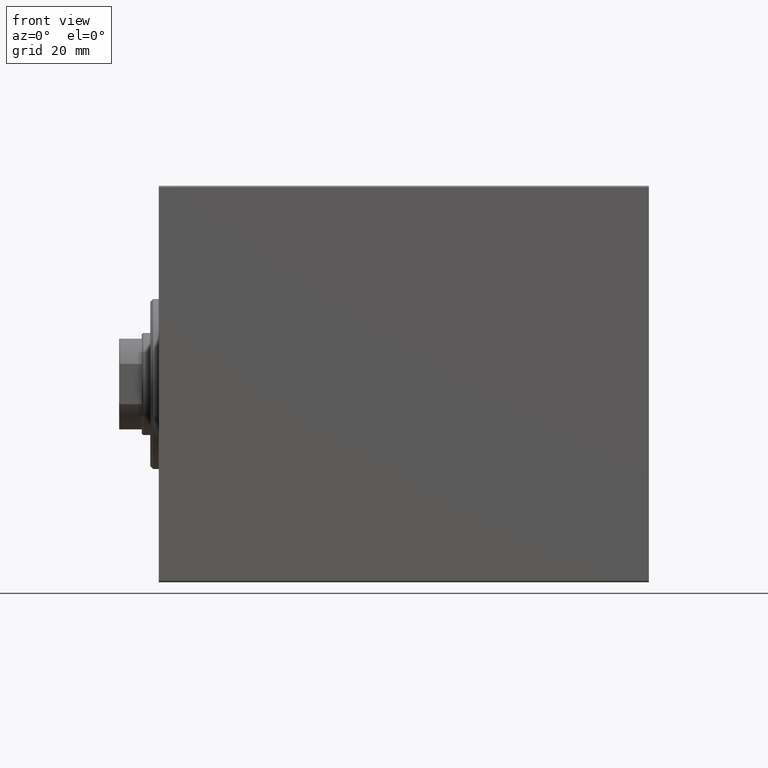
[diagram: clean part render]
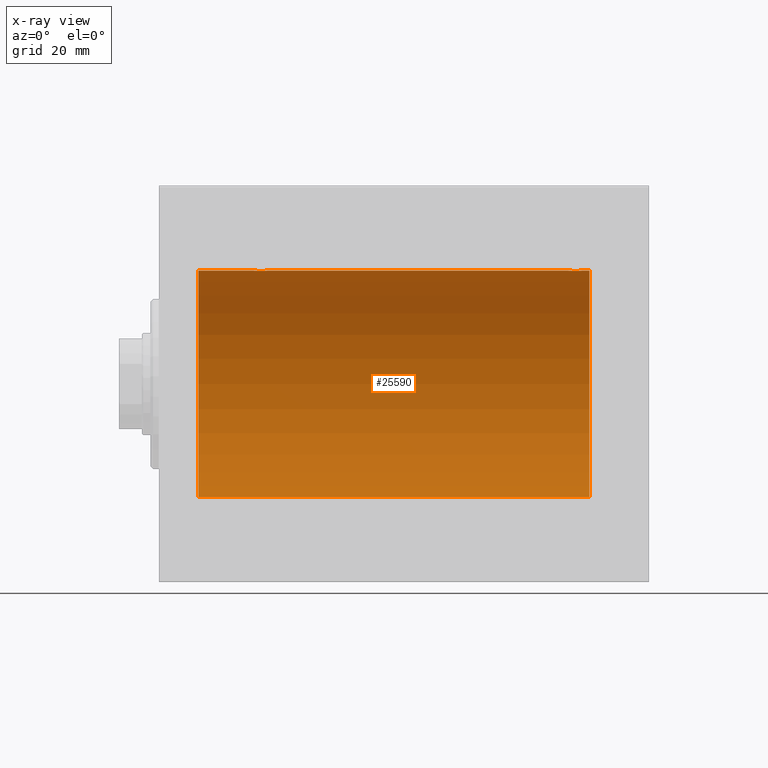
[diagram: x-ray — body ghosted, one internal face saturated and labeled with its STEP entity id]
A machine part, front view, then the same camera in x-ray: the body is ghosted and one INTERNAL B-rep face — a face not visible from any outside direction — is saturated and labeled: STEP entity #25590.
In plain terms, the highlighted cylindrical surface (partial cylindrical patch) has radius 40 mm, axis along (-1, -0, -0).
Its self-contained STEP definition (entity closure, byte-faithful):
#761 = CARTESIAN_POINT ( 'NONE',  ( 152.0000000000000000, 0.000000000000000000, 40.00000000000000000 ) ) ;
#1392 = CARTESIAN_POINT ( 'NONE',  ( 152.0000000000000000, 0.000000000000000000, 40.00000000000000000 ) ) ;
#1987 = CARTESIAN_POINT ( 'NONE',  ( 38.90427371185430161, 0.7768046863726105755, 39.99291636985138609 ) ) ;
#2205 = CARTESIAN_POINT ( 'NONE',  ( 34.17068180410537792, 2.385749008316979669, 39.92893738690724348 ) ) ;
#2258 = CARTESIAN_POINT ( 'NONE',  ( 148.8315373355074769, 2.384195078505186416, 39.92903310064217948 ) ) ;
#2481 = CARTESIAN_POINT ( 'NONE',  ( 150.0000000000000284, 1.446721683758770418E-15, 40.00000000000000000 ) ) ;
#2649 = CARTESIAN_POINT ( 'NONE',  ( 36.39154242090099700, 2.980886287300807957, 39.88879301994635540 ) ) ;
#2924 = CARTESIAN_POINT ( 'NONE',  ( 148.3290230553672018, 2.696641662727001787, 39.90906847305313221 ) ) ;
#4168 = B_SPLINE_CURVE_WITH_KNOTS ( 'NONE', 3,
 ( #2481, #36808, #39477, #33471, #22995, #42845, #26794, #43063, #43720, #40361, #2258, #32591, #2924, #9833, #16533, #12301, #26573, #26355, #8958, #9613, #25905, #29476, #5825, #39704, #22552, #37024, #36148, #12523, #5610, #33027, #22780, #36367, #32811, #16097 ),
 .UNSPECIFIED., .F., .F.,
 ( 4, 2, 2, 2, 2, 2, 2, 2, 2, 2, 2, 2, 2, 2, 2, 2, 4 ),
 ( 1.405868427696373966E-18, 0.0005864162728940697320, 0.001172832545788137946, 0.001759248818682206377, 0.002345665091576274591, 0.002932081364470342805, 0.003518497637364411453, 0.004104913910258479667, 0.004691330183152548315, 0.005277746456046616963, 0.005864162728940684743, 0.006450579001834753391, 0.007036995274728822039, 0.007623411547622889819, 0.008209827820516957600, 0.008796244093411027115, 0.009382660366305094896 ),
 .UNSPECIFIED. ) ;
#4254 = CARTESIAN_POINT ( 'NONE',  ( 13.99999999999998401, 0.000000000000000000, 40.00000000000000000 ) ) ;
#4846 = LINE ( 'NONE', #21790, #34275 ) ;
#5196 = DIRECTION ( 'NONE',  ( -1.000000000000000000, 0.000000000000000000, 0.000000000000000000 ) ) ;
#5554 = CARTESIAN_POINT ( 'NONE',  ( 35.60649793607049673, 2.980544951704983347, 39.88881833341080352 ) ) ;
#5610 = CARTESIAN_POINT ( 'NONE',  ( 144.3036467693047769, 1.329803094607254321, 39.97830262548650637 ) ) ;
#5825 = CARTESIAN_POINT ( 'NONE',  ( 145.4957064313994977, 2.602941461497640496, 39.91536715259250911 ) ) ;
#5842 = CARTESIAN_POINT ( 'NONE',  ( 150.0000000000000284, 1.446721683758770418E-15, 40.00000000000000000 ) ) ;
#5989 = CARTESIAN_POINT ( 'NONE',  ( 37.83153733550744136, 2.384195078505188636, 39.92903310064217948 ) ) ;
#6033 = VERTEX_POINT ( 'NONE', #37917 ) ;
#6218 = CARTESIAN_POINT ( 'NONE',  ( 33.09635504612251111, 0.7792872749133261667, 39.99287049138470707 ) ) ;
#6806 = CARTESIAN_POINT ( 'NONE',  ( 152.0000000000000000, 4.898587196589413026E-15, -40.00000000000000000 ) ) ;
#7118 = EDGE_LOOP ( 'NONE', ( #25196, #33240, #26301, #33249, #28931, #40675, #29082, #19563 ) ) ;
#7784 = DIRECTION ( 'NONE',  ( -1.000000000000000000, 0.000000000000000000, 0.000000000000000000 ) ) ;
#8217 = CARTESIAN_POINT ( 'NONE',  ( 144.0000000000000284, -1.482387970046064334E-23, 40.00000000000000000 ) ) ;
#8394 = DIRECTION ( 'NONE',  ( -1.000000000000000000, -0.000000000000000000, -0.000000000000000000 ) ) ;
#8686 = CARTESIAN_POINT ( 'NONE',  ( 38.69591204181047317, 1.330687358699878420, 39.97827280031935970 ) ) ;
#8958 = CARTESIAN_POINT ( 'NONE',  ( 146.6064979360705536, 2.980544951704977574, 39.88881833341080352 ) ) ;
#9118 = CARTESIAN_POINT ( 'NONE',  ( 33.39757861902342029, 1.505187563391998884, 39.97200074276641857 ) ) ;
#9613 = CARTESIAN_POINT ( 'NONE',  ( 146.2216664113802551, 2.903909245874791267, 39.89447063612582411 ) ) ;
#9833 = CARTESIAN_POINT ( 'NONE',  ( 147.9680084476328545, 2.846249845702957693, 39.89867772821342129 ) ) ;
#12031 = CARTESIAN_POINT ( 'NONE',  ( 33.00000000000001421, 0.1958295874890018384, 39.99999999999998579 ) ) ;
#12091 = LINE ( 'NONE', #1392, #17453 ) ;
#12252 = CARTESIAN_POINT ( 'NONE',  ( 37.50356430083393633, 2.603499486649419659, 39.91533365697402758 ) ) ;
#12301 = CARTESIAN_POINT ( 'NONE',  ( 147.3915424209010041, 2.980886287300803072, 39.88879301994635540 ) ) ;
#12316 = DIRECTION ( 'NONE',  ( -1.000000000000000000, -0.000000000000000000, -0.000000000000000000 ) ) ;
#12523 = CARTESIAN_POINT ( 'NONE',  ( 144.3975786190234487, 1.505187563391999328, 39.97200074276641857 ) ) ;
#12686 = CARTESIAN_POINT ( 'NONE',  ( 37.98255211990295521, 2.260036752248976377, 39.93634209860680073 ) ) ;
#12737 = VECTOR ( 'NONE', #13700, 1000.000000000000000 ) ;
#13354 = VERTEX_POINT ( 'NONE', #38304 ) ;
#13700 = DIRECTION ( 'NONE',  ( -1.000000000000000000, -0.000000000000000000, -0.000000000000000000 ) ) ;
#13922 = LINE ( 'NONE', #761, #12737 ) ;
#14204 = AXIS2_PLACEMENT_3D ( 'NONE', #43080, #12316, #25704 ) ;
#15462 = CARTESIAN_POINT ( 'NONE',  ( 152.0000000000000000, 0.000000000000000000, 0.000000000000000000 ) ) ;
#15471 = EDGE_CURVE ( 'NONE', #42330, #29802, #43293, .T. ) ;
#15488 = VERTEX_POINT ( 'NONE', #8217 ) ;
#15818 = CARTESIAN_POINT ( 'NONE',  ( 38.84654924566736867, 0.9673820216299553465, 39.98871336974454493 ) ) ;
#16040 = CARTESIAN_POINT ( 'NONE',  ( 38.38599102747435410, 1.829066045078044711, 39.95849278436325136 ) ) ;
#16097 = CARTESIAN_POINT ( 'NONE',  ( 144.0000000000000284, -1.482387970046064334E-23, 40.00000000000000000 ) ) ;
#16258 = CARTESIAN_POINT ( 'NONE',  ( 36.19682449776940558, 2.999929504480790321, 39.88734665245503663 ) ) ;
#16533 = CARTESIAN_POINT ( 'NONE',  ( 147.7788663188552221, 2.903851887155386891, 39.89447500423337800 ) ) ;
#17453 = VECTOR ( 'NONE', #28616, 1000.000000000000000 ) ;
#17651 = AXIS2_PLACEMENT_3D ( 'NONE', #24734, #7784, #34978 ) ;
#18889 = DIRECTION ( 'NONE',  ( -1.000000000000000000, -0.000000000000000000, -0.000000000000000000 ) ) ;
#19163 = CARTESIAN_POINT ( 'NONE',  ( 35.03461702239748377, 2.847223932150706016, 39.89860891179019120 ) ) ;
#19563 = ORIENTED_EDGE ( 'NONE', *, *, #15471, .T. ) ;
#21246 = VERTEX_POINT ( 'NONE', #25054 ) ;
#21790 = CARTESIAN_POINT ( 'NONE',  ( 152.0000000000000000, 0.000000000000000000, 40.00000000000000000 ) ) ;
#22280 = CARTESIAN_POINT ( 'NONE',  ( 38.25929512657906173, 1.983397227149399589, 39.95103655448512825 ) ) ;
#22498 = CARTESIAN_POINT ( 'NONE',  ( 34.49570643139941950, 2.602941461497644049, 39.91536715259250911 ) ) ;
#22552 = CARTESIAN_POINT ( 'NONE',  ( 145.0191701439611336, 2.261756164323870166, 39.93625070860936432 ) ) ;
#22723 = CARTESIAN_POINT ( 'NONE',  ( 39.00000000000000000, 1.037715139942869821E-15, 40.00000000000000000 ) ) ;
#22780 = CARTESIAN_POINT ( 'NONE',  ( 144.0963550461225395, 0.7792872749133264998, 39.99287049138470707 ) ) ;
#22995 = CARTESIAN_POINT ( 'NONE',  ( 149.8465492456673758, 0.9673820216299510166, 39.98871336974454493 ) ) ;
#23022 = EDGE_CURVE ( 'NONE', #13354, #25638, #13922, .T. ) ;
#23093 = EDGE_CURVE ( 'NONE', #13354, #29811, #43352, .T. ) ;
#24165 = EDGE_CURVE ( 'NONE', #21246, #6033, #39537, .T. ) ;
#24734 = CARTESIAN_POINT ( 'NONE',  ( 13.99999999999998401, 0.000000000000000000, 0.000000000000000000 ) ) ;
#25054 = CARTESIAN_POINT ( 'NONE',  ( 39.00000000000000000, 1.037715139942869821E-15, 40.00000000000000000 ) ) ;
#25196 = ORIENTED_EDGE ( 'NONE', *, *, #26648, .F. ) ;
#25590 = ADVANCED_FACE ( 'NONE', ( #42860 ), #35730, .F. ) ;
#25637 = CARTESIAN_POINT ( 'NONE',  ( 34.67130743887656763, 2.696891635062799608, 39.90905226542625428 ) ) ;
#25638 = VERTEX_POINT ( 'NONE', #5842 ) ;
#25704 = DIRECTION ( 'NONE',  ( 0.000000000000000000, 0.000000000000000000, 1.000000000000000000 ) ) ;
#25905 = CARTESIAN_POINT ( 'NONE',  ( 146.0346170223974980, 2.847223932150697578, 39.89860891179019120 ) ) ;
#26300 = CARTESIAN_POINT ( 'NONE',  ( 36.77886631885524338, 2.903851887155389555, 39.89447500423337800 ) ) ;
#26301 = ORIENTED_EDGE ( 'NONE', *, *, #23022, .T. ) ;
#26355 = CARTESIAN_POINT ( 'NONE',  ( 146.8053303862724022, 3.000070108558740234, 39.88733607736547526 ) ) ;
#26518 = CARTESIAN_POINT ( 'NONE',  ( 35.22166641138024090, 2.903909245874795708, 39.89447063612582411 ) ) ;
#26573 = CARTESIAN_POINT ( 'NONE',  ( 147.1968244977694553, 2.999929504480784104, 39.88734665245503663 ) ) ;
#26648 = EDGE_CURVE ( 'NONE', #29811, #29802, #32033, .T. ) ;
#26794 = CARTESIAN_POINT ( 'NONE',  ( 149.6037411517825717, 1.502986292339226981, 39.97208601512195258 ) ) ;
#27327 = CARTESIAN_POINT ( 'NONE',  ( 13.99999999999998401, 4.898587196589413026E-15, -40.00000000000000000 ) ) ;
#28616 = DIRECTION ( 'NONE',  ( -1.000000000000000000, -0.000000000000000000, -0.000000000000000000 ) ) ;
#28635 = DIRECTION ( 'NONE',  ( 0.000000000000000000, 0.000000000000000000, 1.000000000000000000 ) ) ;
#28931 = ORIENTED_EDGE ( 'NONE', *, *, #40049, .T. ) ;
#28989 = CARTESIAN_POINT ( 'NONE',  ( 33.01962587690334061, 0.3947312521144659136, 39.99851454786935534 ) ) ;
#29082 = ORIENTED_EDGE ( 'NONE', *, *, #30708, .T. ) ;
#29210 = CARTESIAN_POINT ( 'NONE',  ( 38.98053369568978610, 0.3932559001416434108, 39.99852666141217838 ) ) ;
#29426 = CARTESIAN_POINT ( 'NONE',  ( 34.01917014396114780, 2.261756164323880380, 39.93625070860936432 ) ) ;
#29476 = CARTESIAN_POINT ( 'NONE',  ( 145.6713074388765961, 2.696891635062789838, 39.90905226542625428 ) ) ;
#29564 = CARTESIAN_POINT ( 'NONE',  ( 152.0000000000000000, 4.898587196589413026E-15, -40.00000000000000000 ) ) ;
#29802 = VERTEX_POINT ( 'NONE', #27327 ) ;
#29811 = VERTEX_POINT ( 'NONE', #6806 ) ;
#30708 = EDGE_CURVE ( 'NONE', #6033, #42330, #4846, .T. ) ;
#32033 = LINE ( 'NONE', #29564, #39134 ) ;
#32591 = CARTESIAN_POINT ( 'NONE',  ( 148.5035643008339719, 2.603499486649415218, 39.91533365697402758 ) ) ;
#32811 = CARTESIAN_POINT ( 'NONE',  ( 144.0000000000000568, 0.1958295874890039479, 39.99999999999998579 ) ) ;
#33027 = CARTESIAN_POINT ( 'NONE',  ( 144.1530856663910924, 0.9663207501652035791, 39.98873943115997065 ) ) ;
#33196 = CARTESIAN_POINT ( 'NONE',  ( 36.96800844763285454, 2.846249845702961689, 39.89867772821342129 ) ) ;
#33240 = ORIENTED_EDGE ( 'NONE', *, *, #23093, .F. ) ;
#33249 = ORIENTED_EDGE ( 'NONE', *, *, #41262, .T. ) ;
#33417 = CARTESIAN_POINT ( 'NONE',  ( 33.30364676930471290, 1.329803094607255876, 39.97830262548650637 ) ) ;
#33471 = CARTESIAN_POINT ( 'NONE',  ( 149.9042737118543016, 0.7768046863726091322, 39.99291636985138609 ) ) ;
#34275 = VECTOR ( 'NONE', #18889, 1000.000000000000000 ) ;
#34978 = DIRECTION ( 'NONE',  ( 0.000000000000000000, 0.000000000000000000, 1.000000000000000000 ) ) ;
#35730 = CYLINDRICAL_SURFACE ( 'NONE', #14204, 40.00000000000000000 ) ;
#35874 = CARTESIAN_POINT ( 'NONE',  ( 33.15308566639104981, 0.9663207501652035791, 39.98873943115997065 ) ) ;
#36148 = CARTESIAN_POINT ( 'NONE',  ( 144.6148306203060656, 1.830069308885369450, 39.95844440547435994 ) ) ;
#36367 = CARTESIAN_POINT ( 'NONE',  ( 144.0196258769033477, 0.3947312521144673014, 39.99851454786935534 ) ) ;
#36753 = CARTESIAN_POINT ( 'NONE',  ( 33.61483062030600166, 1.830069308885371004, 39.95844440547435994 ) ) ;
#36808 = CARTESIAN_POINT ( 'NONE',  ( 150.0000000000000284, 0.1982918730505192351, 39.99999999999999289 ) ) ;
#37024 = CARTESIAN_POINT ( 'NONE',  ( 144.7390160613683179, 1.981711254113857290, 39.95112616827061913 ) ) ;
#37917 = CARTESIAN_POINT ( 'NONE',  ( 32.99999999999999289, -1.483452932268112700E-23, 40.00000000000000000 ) ) ;
#38304 = CARTESIAN_POINT ( 'NONE',  ( 152.0000000000000000, 0.000000000000000000, 40.00000000000000000 ) ) ;
#39134 = VECTOR ( 'NONE', #8394, 1000.000000000000000 ) ;
#39424 = CARTESIAN_POINT ( 'NONE',  ( 32.99999999999999289, -1.483452932268112700E-23, 40.00000000000000000 ) ) ;
#39477 = CARTESIAN_POINT ( 'NONE',  ( 149.9805336956897861, 0.3932559001416426891, 39.99852666141217838 ) ) ;
#39537 = B_SPLINE_CURVE_WITH_KNOTS ( 'NONE', 3,
 ( #22723, #39648, #29210, #1987, #15818, #8686, #42793, #16040, #22280, #12686, #5989, #12252, #43448, #33196, #26300, #2649, #16258, #42572, #5554, #26518, #19163, #25637, #22498, #2205, #29426, #40087, #36753, #9118, #33417, #35874, #6218, #28989, #12031, #39424 ),
 .UNSPECIFIED., .F., .F.,
 ( 4, 2, 2, 2, 2, 2, 2, 2, 2, 2, 2, 2, 2, 2, 2, 2, 4 ),
 ( 2.154821304590792723E-18, 0.0005864162728940711415, 0.001172832545788140115, 0.001759248818682208979, 0.002345665091576278061, 0.002932081364470347142, 0.003518497637364415790, 0.004104913910258484872, 0.004691330183152553519, 0.005277746456046622167, 0.005864162728940691682, 0.006450579001834760330, 0.007036995274728828978, 0.007623411547622898493, 0.008209827820516968008, 0.008796244093411035789, 0.009382660366305105304 ),
 .UNSPECIFIED. ) ;
#39648 = CARTESIAN_POINT ( 'NONE',  ( 39.00000000000000000, 0.1982918730505197347, 39.99999999999999289 ) ) ;
#39704 = CARTESIAN_POINT ( 'NONE',  ( 145.1706818041054419, 2.385749008316978337, 39.92893738690724348 ) ) ;
#40049 = EDGE_CURVE ( 'NONE', #15488, #21246, #12091, .T. ) ;
#40087 = CARTESIAN_POINT ( 'NONE',  ( 33.73901606136833209, 1.981711254113867726, 39.95112616827061913 ) ) ;
#40361 = CARTESIAN_POINT ( 'NONE',  ( 148.9825521199029765, 2.260036752248979930, 39.93634209860680073 ) ) ;
#40675 = ORIENTED_EDGE ( 'NONE', *, *, #24165, .T. ) ;
#41173 = AXIS2_PLACEMENT_3D ( 'NONE', #15462, #5196, #28635 ) ;
#41262 = EDGE_CURVE ( 'NONE', #25638, #15488, #4168, .T. ) ;
#42330 = VERTEX_POINT ( 'NONE', #4254 ) ;
#42572 = CARTESIAN_POINT ( 'NONE',  ( 35.80533038627242348, 3.000070108558746451, 39.88733607736547526 ) ) ;
#42793 = CARTESIAN_POINT ( 'NONE',  ( 38.60374115178256460, 1.502986292339226537, 39.97208601512195258 ) ) ;
#42845 = CARTESIAN_POINT ( 'NONE',  ( 149.6959120418105158, 1.330687358699873979, 39.97827280031935970 ) ) ;
#42860 = FACE_OUTER_BOUND ( 'NONE', #7118, .T. ) ;
#43063 = CARTESIAN_POINT ( 'NONE',  ( 149.3859910274743754, 1.829066045078044267, 39.95849278436325136 ) ) ;
#43080 = CARTESIAN_POINT ( 'NONE',  ( 152.0000000000000000, 0.000000000000000000, 0.000000000000000000 ) ) ;
#43293 = CIRCLE ( 'NONE', #17651, 40.00000000000000000 ) ;
#43352 = CIRCLE ( 'NONE', #41173, 40.00000000000000000 ) ;
#43448 = CARTESIAN_POINT ( 'NONE',  ( 37.32902305536723020, 2.696641662727002675, 39.90906847305313221 ) ) ;
#43720 = CARTESIAN_POINT ( 'NONE',  ( 149.2592951265791044, 1.983397227149406028, 39.95103655448512825 ) ) ;